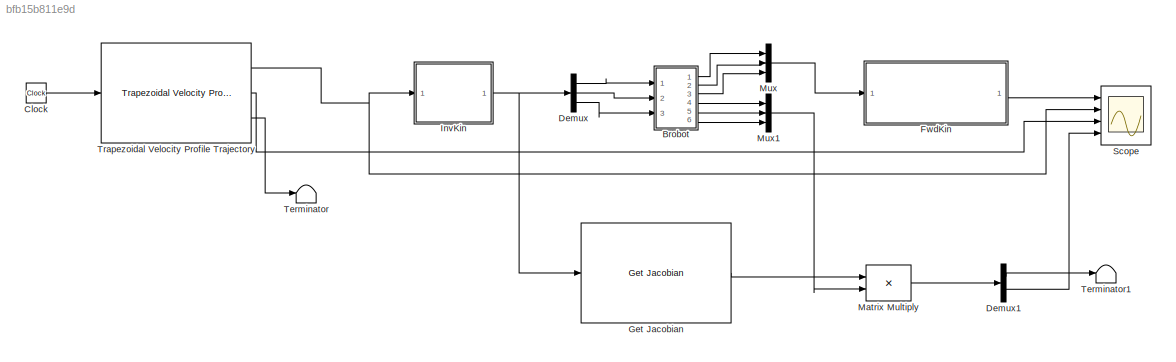
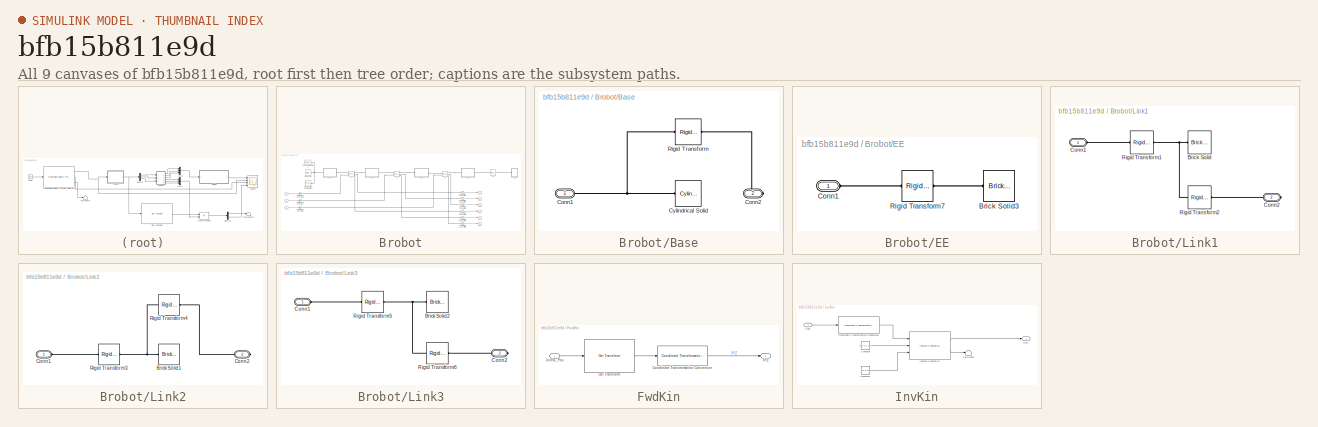
[diagram: thumbnail index - all 9 canvases of the model, root first then tree order]
MODEL slx_bfb15b811e9d
KIND model
CONFIG AbsTol = auto
CONFIG EnableMultiTasking = off
CONFIG FixedStep = auto
CONFIG MaxStep = auto
CONFIG MinStep = auto
CONFIG RelTol = 1e-3
CONFIG SampleTimeConstraint = Unconstrained
CONFIG SolverName = VariableStepAuto
CONFIG StartTime = 0.0
CONFIG StopTime = 10.0
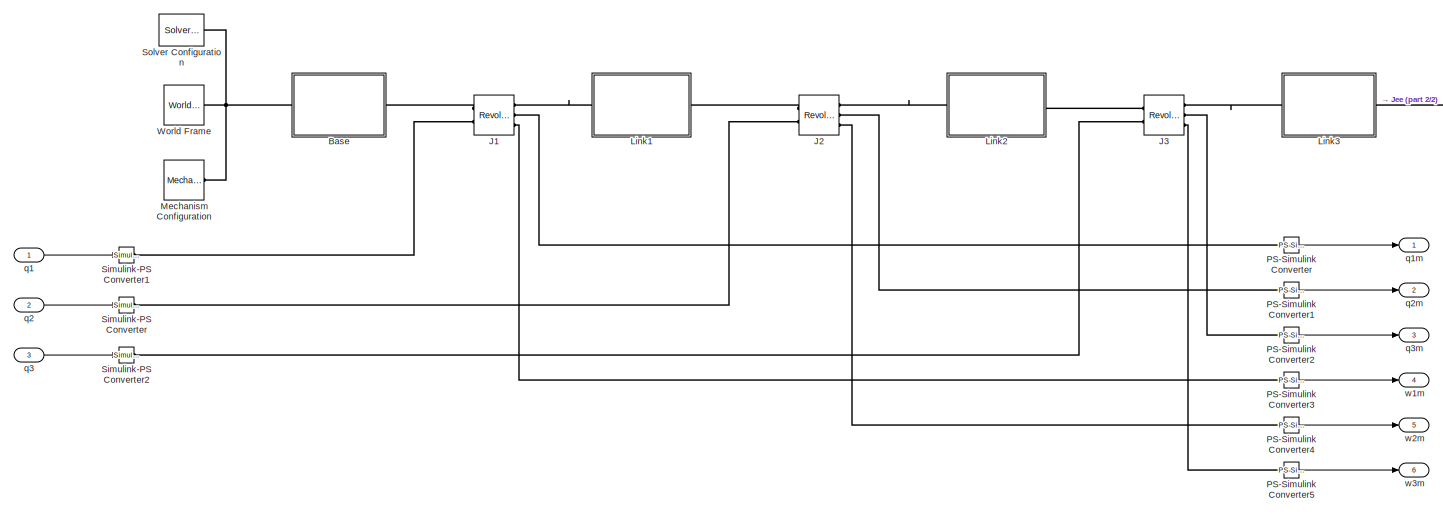
[diagram: Brobot - part 1/2, most of the canvas]
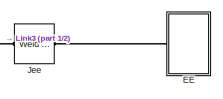
[diagram: Brobot - part 2/2, top right region]
BLOCK [SubSystem] Brobot
  Ports = [3, 6]
  RequestExecContextInheritance = off
BLOCK [SubSystem] Brobot/Base
  Ports = [0, 0, 0, 0, 0, 1, 1]
  RequestExecContextInheritance = off
BLOCK [PMIOPort] Brobot/Base/Conn1
  Side = Left
BLOCK [PMIOPort] Brobot/Base/Conn2
  Port = 2
  Side = Right
BLOCK [Reference] Brobot/Base/Cylindrical Solid  REF=sm_lib/Body Elements/Cylindrical Solid
  Ports = [0, 0, 0, 0, 0, 0, 1]
  SourceBlock = sm_lib/Body Elements/Cylindrical Solid
  SourceProductBaseCode = MS
  SourceType = Cylindrical Solid
BLOCK [Reference] Brobot/Base/Rigid Transform  REF=sm_lib/Frames and
Transforms/Rigid
Transform
  Ports = [0, 0, 0, 0, 0, 1, 1]
  SourceBlock = sm_lib/Frames and\nTransforms/Rigid\nTransform
  SourceProductBaseCode = MS
  SourceType = Rigid\nTransform
BLOCK [SubSystem] Brobot/EE
  Ports = [0, 0, 0, 0, 0, 1]
  RequestExecContextInheritance = off
BLOCK [Reference] Brobot/EE/Brick Solid3  REF=sm_lib/Body Elements/Brick Solid
  Ports = [0, 0, 0, 0, 0, 0, 1]
  SourceBlock = sm_lib/Body Elements/Brick Solid
  SourceProductBaseCode = MS
  SourceType = Brick Solid
BLOCK [PMIOPort] Brobot/EE/Conn1
  Side = Left
BLOCK [Reference] Brobot/EE/Rigid Transform7  REF=sm_lib/Frames and
Transforms/Rigid
Transform
  Ports = [0, 0, 0, 0, 0, 1, 1]
  SourceBlock = sm_lib/Frames and\nTransforms/Rigid\nTransform
  SourceProductBaseCode = MS
  SourceType = Rigid\nTransform
BLOCK [Reference] Brobot/J1  REF=sm_lib/Joints/Revolute Joint
  Ports = [0, 0, 0, 0, 0, 2, 3]
  SourceBlock = sm_lib/Joints/Revolute Joint
  SourceProductBaseCode = MS
  SourceType = Revolute Joint
BLOCK [Reference] Brobot/J2  REF=sm_lib/Joints/Revolute Joint
  Ports = [0, 0, 0, 0, 0, 2, 3]
  SourceBlock = sm_lib/Joints/Revolute Joint
  SourceProductBaseCode = MS
  SourceType = Revolute Joint
BLOCK [Reference] Brobot/J3  REF=sm_lib/Joints/Revolute Joint
  Ports = [0, 0, 0, 0, 0, 2, 3]
  SourceBlock = sm_lib/Joints/Revolute Joint
  SourceProductBaseCode = MS
  SourceType = Revolute Joint
BLOCK [Reference] Brobot/Jee  REF=sm_lib/Joints/Weld Joint
  Ports = [0, 0, 0, 0, 0, 1, 1]
  SourceBlock = sm_lib/Joints/Weld Joint
  SourceProductBaseCode = MS
  SourceType = Weld Joint
BLOCK [SubSystem] Brobot/Link1
  Ports = [0, 0, 0, 0, 0, 1, 1]
  RequestExecContextInheritance = off
BLOCK [Reference] Brobot/Link1/Brick Solid  REF=sm_lib/Body Elements/Brick Solid
  Ports = [0, 0, 0, 0, 0, 0, 1]
  SourceBlock = sm_lib/Body Elements/Brick Solid
  SourceProductBaseCode = MS
  SourceType = Brick Solid
BLOCK [PMIOPort] Brobot/Link1/Conn1
  Side = Left
BLOCK [PMIOPort] Brobot/Link1/Conn2
  Port = 2
  Side = Right
BLOCK [Reference] Brobot/Link1/Rigid Transform1  REF=sm_lib/Frames and
Transforms/Rigid
Transform
  Ports = [0, 0, 0, 0, 0, 1, 1]
  SourceBlock = sm_lib/Frames and\nTransforms/Rigid\nTransform
  SourceProductBaseCode = MS
  SourceType = Rigid\nTransform
BLOCK [Reference] Brobot/Link1/Rigid Transform2  REF=sm_lib/Frames and
Transforms/Rigid
Transform
  Ports = [0, 0, 0, 0, 0, 1, 1]
  SourceBlock = sm_lib/Frames and\nTransforms/Rigid\nTransform
  SourceProductBaseCode = MS
  SourceType = Rigid\nTransform
BLOCK [SubSystem] Brobot/Link2
  Ports = [0, 0, 0, 0, 0, 1, 1]
  RequestExecContextInheritance = off
BLOCK [Reference] Brobot/Link2/Brick Solid1  REF=sm_lib/Body Elements/Brick Solid
  Ports = [0, 0, 0, 0, 0, 0, 1]
  SourceBlock = sm_lib/Body Elements/Brick Solid
  SourceProductBaseCode = MS
  SourceType = Brick Solid
BLOCK [PMIOPort] Brobot/Link2/Conn1
  Side = Left
BLOCK [PMIOPort] Brobot/Link2/Conn2
  Port = 2
  Side = Right
BLOCK [Reference] Brobot/Link2/Rigid Transform3  REF=sm_lib/Frames and
Transforms/Rigid
Transform
  Ports = [0, 0, 0, 0, 0, 1, 1]
  SourceBlock = sm_lib/Frames and\nTransforms/Rigid\nTransform
  SourceProductBaseCode = MS
  SourceType = Rigid\nTransform
BLOCK [Reference] Brobot/Link2/Rigid Transform4  REF=sm_lib/Frames and
Transforms/Rigid
Transform
  Ports = [0, 0, 0, 0, 0, 1, 1]
  SourceBlock = sm_lib/Frames and\nTransforms/Rigid\nTransform
  SourceProductBaseCode = MS
  SourceType = Rigid\nTransform
BLOCK [SubSystem] Brobot/Link3
  Ports = [0, 0, 0, 0, 0, 1, 1]
  RequestExecContextInheritance = off
BLOCK [Reference] Brobot/Link3/Brick Solid2  REF=sm_lib/Body Elements/Brick Solid
  Ports = [0, 0, 0, 0, 0, 0, 1]
  SourceBlock = sm_lib/Body Elements/Brick Solid
  SourceProductBaseCode = MS
  SourceType = Brick Solid
BLOCK [PMIOPort] Brobot/Link3/Conn1
  Side = Left
BLOCK [PMIOPort] Brobot/Link3/Conn2
  Port = 2
  Side = Right
BLOCK [Reference] Brobot/Link3/Rigid Transform5  REF=sm_lib/Frames and
Transforms/Rigid
Transform
  Ports = [0, 0, 0, 0, 0, 1, 1]
  SourceBlock = sm_lib/Frames and\nTransforms/Rigid\nTransform
  SourceProductBaseCode = MS
  SourceType = Rigid\nTransform
BLOCK [Reference] Brobot/Link3/Rigid Transform6  REF=sm_lib/Frames and
Transforms/Rigid
Transform
  Ports = [0, 0, 0, 0, 0, 1, 1]
  SourceBlock = sm_lib/Frames and\nTransforms/Rigid\nTransform
  SourceProductBaseCode = MS
  SourceType = Rigid\nTransform
BLOCK [Reference] Brobot/Mechanism Configuration  REF=sm_lib/Utilities/Mechanism
Configuration
  Ports = [0, 0, 0, 0, 0, 0, 1]
  SourceBlock = sm_lib/Utilities/Mechanism\nConfiguration
  SourceProductBaseCode = MS
  SourceType = Mechanism\nConfiguration
BLOCK [Reference] Brobot/PS-Simulink Converter  REF=nesl_utility/PS-Simulink
Converter
  Ports = [0, 1, 0, 0, 0, 1]
  SourceBlock = nesl_utility/PS-Simulink\nConverter
  SourceProductBaseCode = PW,SS
  SourceType = PS-Simulink\nConverter
BLOCK [Reference] Brobot/PS-Simulink Converter1  REF=nesl_utility/PS-Simulink
Converter
  Ports = [0, 1, 0, 0, 0, 1]
  SourceBlock = nesl_utility/PS-Simulink\nConverter
  SourceProductBaseCode = PW,SS
  SourceType = PS-Simulink\nConverter
BLOCK [Reference] Brobot/PS-Simulink Converter2  REF=nesl_utility/PS-Simulink
Converter
  Ports = [0, 1, 0, 0, 0, 1]
  SourceBlock = nesl_utility/PS-Simulink\nConverter
  SourceProductBaseCode = PW,SS
  SourceType = PS-Simulink\nConverter
BLOCK [Reference] Brobot/PS-Simulink Converter3  REF=nesl_utility/PS-Simulink
Converter
  Ports = [0, 1, 0, 0, 0, 1]
  SourceBlock = nesl_utility/PS-Simulink\nConverter
  SourceProductBaseCode = PW,SS
  SourceType = PS-Simulink\nConverter
BLOCK [Reference] Brobot/PS-Simulink Converter4  REF=nesl_utility/PS-Simulink
Converter
  Ports = [0, 1, 0, 0, 0, 1]
  SourceBlock = nesl_utility/PS-Simulink\nConverter
  SourceProductBaseCode = PW,SS
  SourceType = PS-Simulink\nConverter
BLOCK [Reference] Brobot/PS-Simulink Converter5  REF=nesl_utility/PS-Simulink
Converter
  Ports = [0, 1, 0, 0, 0, 1]
  SourceBlock = nesl_utility/PS-Simulink\nConverter
  SourceProductBaseCode = PW,SS
  SourceType = PS-Simulink\nConverter
BLOCK [Reference] Brobot/Simulink-PS Converter  REF=nesl_utility/Simulink-PS
Converter
  Ports = [1, 0, 0, 0, 0, 0, 1]
  SourceBlock = nesl_utility/Simulink-PS\nConverter
  SourceProductBaseCode = PW,SS
  SourceType = Simulink-PS\nConverter
BLOCK [Reference] Brobot/Simulink-PS Converter1  REF=nesl_utility/Simulink-PS
Converter
  Ports = [1, 0, 0, 0, 0, 0, 1]
  SourceBlock = nesl_utility/Simulink-PS\nConverter
  SourceProductBaseCode = PW,SS
  SourceType = Simulink-PS\nConverter
BLOCK [Reference] Brobot/Simulink-PS Converter2  REF=nesl_utility/Simulink-PS
Converter
  Ports = [1, 0, 0, 0, 0, 0, 1]
  SourceBlock = nesl_utility/Simulink-PS\nConverter
  SourceProductBaseCode = PW,SS
  SourceType = Simulink-PS\nConverter
BLOCK [Reference] Brobot/Solver Configuration  REF=nesl_utility/Solver
Configuration
  Ports = [0, 0, 0, 0, 0, 0, 1]
  SourceBlock = nesl_utility/Solver\nConfiguration
  SourceProductBaseCode = PW,SS
  SourceType = Solver\nConfiguration
BLOCK [Reference] Brobot/World Frame  REF=sm_lib/Frames and
Transforms/World Frame
  Ports = [0, 0, 0, 0, 0, 0, 1]
  SourceBlock = sm_lib/Frames and\nTransforms/World Frame
  SourceProductBaseCode = MS
  SourceType = World Frame
BLOCK [Inport] Brobot/q1
BLOCK [Outport] Brobot/q1m
BLOCK [Inport] Brobot/q2
  Port = 2
BLOCK [Outport] Brobot/q2m
  Port = 2
BLOCK [Inport] Brobot/q3
  Port = 3
BLOCK [Outport] Brobot/q3m
  Port = 3
BLOCK [Outport] Brobot/w1m
  Port = 4
BLOCK [Outport] Brobot/w2m
  Port = 5
BLOCK [Outport] Brobot/w3m
  Port = 6
BLOCK [Clock] Clock
BLOCK [Demux] Demux
  Outputs = 3
  Ports = [1, 3]
BLOCK [Demux] Demux1
  Outputs = 2
  Ports = [1, 2]
BLOCK [SubSystem] FwdKin
  Ports = [1, 1]
  RequestExecContextInheritance = off
BLOCK [Reference] FwdKin/Coordinate Transformation Conversion  REF=robotcorelib/Coordinate Transformation Conversion
  Ports = [1, 1]
  SourceBlock = robotcorelib/Coordinate Transformation Conversion
  SourceProductBaseCode = NV,RO,RR,UV
  SourceType = robotics.slcore.internal.block.CoordinateTransformationConversion
BLOCK [Reference] FwdKin/Get Transform  REF=robotmaniplib/Get Transform
  Ports = [1, 1]
  SourceBlock = robotmaniplib/Get Transform
  SourceProductBaseCode = RO
  SourceType = Get Transform
BLOCK [Inport] FwdKin/Joints_Pos
BLOCK [Outport] FwdKin/XYZ
BLOCK [Reference] Get Jacobian  REF=robotmaniplib/Get Jacobian
  Ports = [1, 1]
  SourceBlock = robotmaniplib/Get Jacobian
  SourceProductBaseCode = RO
  SourceType = Get Jacobian
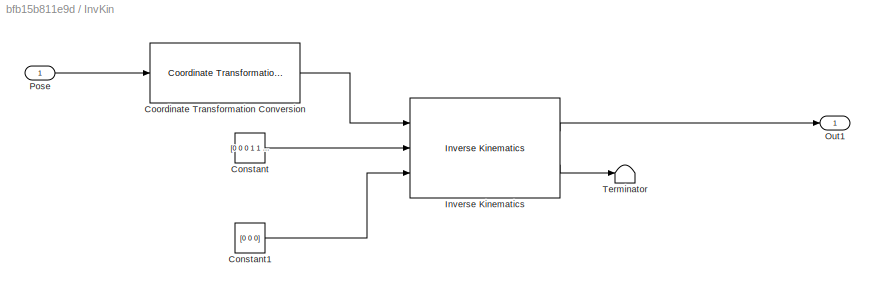
BLOCK [SubSystem] InvKin
  Ports = [1, 1]
  RequestExecContextInheritance = off
BLOCK [Constant] InvKin/Constant
  Value = [0 0 0 1 1 1]
BLOCK [Constant] InvKin/Constant1
  Value = [0 0 0]
BLOCK [Reference] InvKin/Coordinate Transformation Conversion  REF=robotcorelib/Coordinate Transformation Conversion
  Ports = [1, 1]
  SourceBlock = robotcorelib/Coordinate Transformation Conversion
  SourceProductBaseCode = NV,RO,RR,UV
  SourceType = robotics.slcore.internal.block.CoordinateTransformationConversion
BLOCK [Reference] InvKin/Inverse Kinematics  REF=robotmaniplib/Inverse Kinematics
  Ports = [3, 2]
  SourceBlock = robotmaniplib/Inverse Kinematics
  SourceProductBaseCode = RO
  SourceType = Inverse Kinematics
BLOCK [Outport] InvKin/Out1
BLOCK [Inport] InvKin/Pose
BLOCK [Terminator] InvKin/Terminator
BLOCK [Product] Matrix Multiply
  Multiplication = Matrix(*)
  Ports = [2, 1]
BLOCK [Mux] Mux
  DisplayOption = bar
  Inputs = 3
  Ports = [3, 1]
BLOCK [Mux] Mux1
  DisplayOption = bar
  Inputs = 3
  Ports = [3, 1]
BLOCK [Scope] Scope
  Floating = off
  NumInputPorts = 4
  Ports = [4]
  ScopeSpecificationString = Simulink.scopes.TimeScopeBlockCfg('CurrentConfiguration', extmgr.ConfigurationSet(extmgr.Configuration('Core','General UI',true),extmgr.Configuration('Core','Source UI',true),extmgr.Configuration('Sources','WiredSimulink',true),extmgr.Configuration('Visuals','Time Domain',true,'SerializedDisplays',{struct('MinYLimReal','-0.0437','MaxYLimReal','0.39333','YLabelReal','','MinYLimMag','0.00000','MaxYL...<+3661ch>
BLOCK [Terminator] Terminator
BLOCK [Terminator] Terminator1
BLOCK [Reference] Trapezoidal Velocity Profile Trajectory  REF=robotcorelib/Trapezoidal Velocity Profile Trajectory
  Ports = [1, 3]
  SourceBlock = robotcorelib/Trapezoidal Velocity Profile Trajectory
  SourceProductBaseCode = NV,RO,RR,UV
  SourceType = robotics.slcore.internal.block.TrapVelTrajSys
LINE Brobot/PS-Simulink Converter1:1 -> Brobot/q2m:1
LINE Brobot/PS-Simulink Converter2:1 -> Brobot/q3m:1
LINE Brobot/PS-Simulink Converter3:1 -> Brobot/w1m:1
LINE Brobot/PS-Simulink Converter4:1 -> Brobot/w2m:1
LINE Brobot/PS-Simulink Converter5:1 -> Brobot/w3m:1
LINE Brobot/PS-Simulink Converter:1 -> Brobot/q1m:1
LINE Brobot/q1:1 -> Brobot/Simulink-PS Converter1:1
LINE Brobot/q2:1 -> Brobot/Simulink-PS Converter:1
LINE Brobot/q3:1 -> Brobot/Simulink-PS Converter2:1
LINE Brobot:1 -> Mux:1
LINE Brobot:2 -> Mux:2
LINE Brobot:3 -> Mux:3
LINE Brobot:4 -> Mux1:1
LINE Brobot:5 -> Mux1:2
LINE Brobot:6 -> Mux1:3
LINE Clock:1 -> Trapezoidal Velocity Profile Trajectory:1
LINE Demux1:1 -> Terminator1:1
LINE Demux1:2 -> Scope:4
LINE Demux:1 -> Brobot:1
LINE Demux:2 -> Brobot:2
LINE Demux:3 -> Brobot:3
LINE FwdKin/Coordinate Transformation Conversion:1 -> FwdKin/XYZ:1
LINE FwdKin/Get Transform:1 -> FwdKin/Coordinate Transformation Conversion:1
LINE FwdKin/Joints_Pos:1 -> FwdKin/Get Transform:1
LINE FwdKin:1 -> Scope:1
LINE Get Jacobian:1 -> Matrix Multiply:1
LINE InvKin/Constant1:1 -> InvKin/Inverse Kinematics:3
LINE InvKin/Constant:1 -> InvKin/Inverse Kinematics:2
LINE InvKin/Coordinate Transformation Conversion:1 -> InvKin/Inverse Kinematics:1
LINE InvKin/Inverse Kinematics:1 -> InvKin/Out1:1
LINE InvKin/Inverse Kinematics:2 -> InvKin/Terminator:1
LINE InvKin/Pose:1 -> InvKin/Coordinate Transformation Conversion:1
NET InvKin:1 -> Demux:1, Get Jacobian:1
LINE Matrix Multiply:1 -> Demux1:1
LINE Mux1:1 -> Matrix Multiply:2
LINE Mux:1 -> FwdKin:1
NET Trapezoidal Velocity Profile Trajectory:1 -> InvKin:1, Scope:2
LINE Trapezoidal Velocity Profile Trajectory:2 -> Scope:3
LINE Trapezoidal Velocity Profile Trajectory:3 -> Terminator:1
PNET net1: Brobot/Base/Conn1:RConn1 -- Brobot/Base/Cylindrical Solid:RConn1 -- Brobot/Base/Rigid Transform:LConn1
PLINE Brobot/Base/Conn2:RConn1 -- Brobot/Base/Rigid Transform:RConn1
PNET net2: Brobot/Base:LConn1 -- Brobot/Mechanism Configuration:RConn1 -- Brobot/Solver Configuration:RConn1 -- Brobot/World Frame:RConn1
PLINE Brobot/Base:RConn1 -- Brobot/J1:LConn1
PLINE Brobot/EE/Brick Solid3:RConn1 -- Brobot/EE/Rigid Transform7:RConn1
PLINE Brobot/EE/Conn1:RConn1 -- Brobot/EE/Rigid Transform7:LConn1
PLINE Brobot/EE:LConn1 -- Brobot/Jee:RConn1
PLINE Brobot/J1:LConn2 -- Brobot/Simulink-PS Converter1:RConn1
PLINE Brobot/J1:RConn1 -- Brobot/Link1:LConn1
PLINE Brobot/J1:RConn2 -- Brobot/PS-Simulink Converter:LConn1
PLINE Brobot/J1:RConn3 -- Brobot/PS-Simulink Converter3:LConn1
PLINE Brobot/J2:LConn1 -- Brobot/Link1:RConn1
PLINE Brobot/J2:LConn2 -- Brobot/Simulink-PS Converter:RConn1
PLINE Brobot/J2:RConn1 -- Brobot/Link2:LConn1
PLINE Brobot/J2:RConn2 -- Brobot/PS-Simulink Converter1:LConn1
PLINE Brobot/J2:RConn3 -- Brobot/PS-Simulink Converter4:LConn1
PLINE Brobot/J3:LConn1 -- Brobot/Link2:RConn1
PLINE Brobot/J3:LConn2 -- Brobot/Simulink-PS Converter2:RConn1
PLINE Brobot/J3:RConn1 -- Brobot/Link3:LConn1
PLINE Brobot/J3:RConn2 -- Brobot/PS-Simulink Converter2:LConn1
PLINE Brobot/J3:RConn3 -- Brobot/PS-Simulink Converter5:LConn1
PLINE Brobot/Jee:LConn1 -- Brobot/Link3:RConn1
PNET net3: Brobot/Link1/Brick Solid:RConn1 -- Brobot/Link1/Rigid Transform1:RConn1 -- Brobot/Link1/Rigid Transform2:LConn1
PLINE Brobot/Link1/Conn1:RConn1 -- Brobot/Link1/Rigid Transform1:LConn1
PLINE Brobot/Link1/Conn2:RConn1 -- Brobot/Link1/Rigid Transform2:RConn1
PNET net4: Brobot/Link2/Brick Solid1:RConn1 -- Brobot/Link2/Rigid Transform3:RConn1 -- Brobot/Link2/Rigid Transform4:LConn1
PLINE Brobot/Link2/Conn1:RConn1 -- Brobot/Link2/Rigid Transform3:LConn1
PLINE Brobot/Link2/Conn2:RConn1 -- Brobot/Link2/Rigid Transform4:RConn1
PNET net5: Brobot/Link3/Brick Solid2:RConn1 -- Brobot/Link3/Rigid Transform5:RConn1 -- Brobot/Link3/Rigid Transform6:LConn1
PLINE Brobot/Link3/Conn1:RConn1 -- Brobot/Link3/Rigid Transform5:LConn1
PLINE Brobot/Link3/Conn2:RConn1 -- Brobot/Link3/Rigid Transform6:RConn1
note: NET lines group one-source signal fan-out (src -> all destinations, sorted); 1:1 wires keep LINE; PNET lines group multi-terminal physical nets as a canonical sorted terminal list (undirected conserving connections); 2-terminal nets keep the pairwise PLINE form
